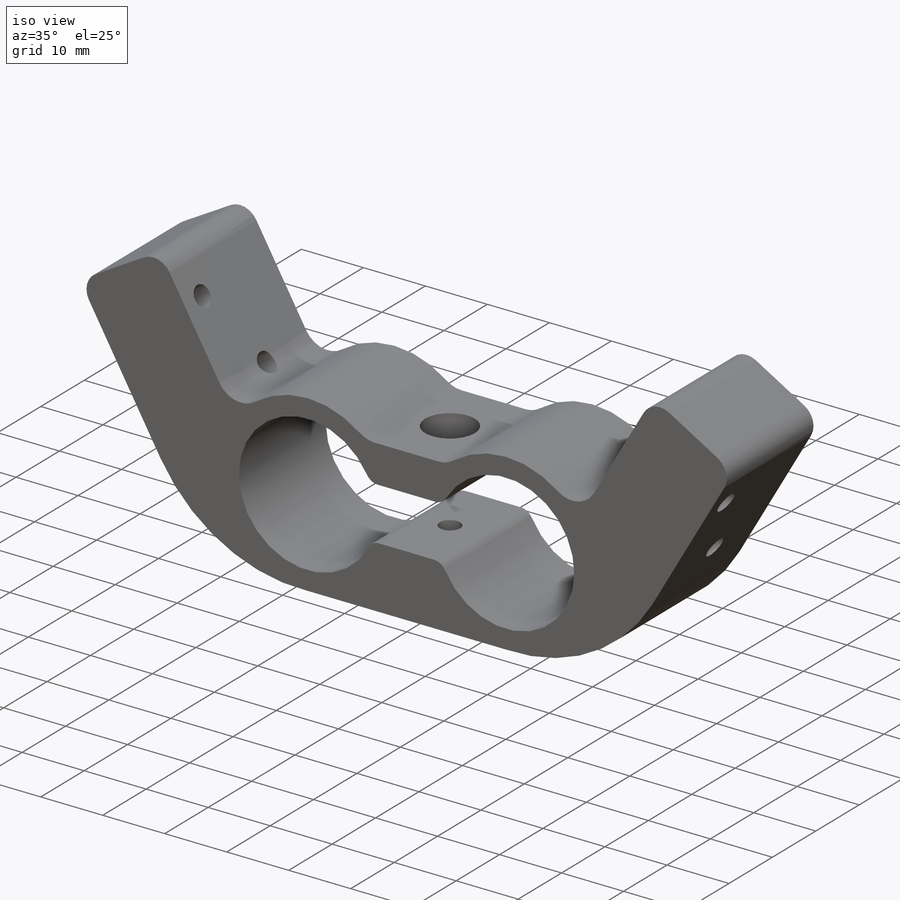
[diagram: iso view]
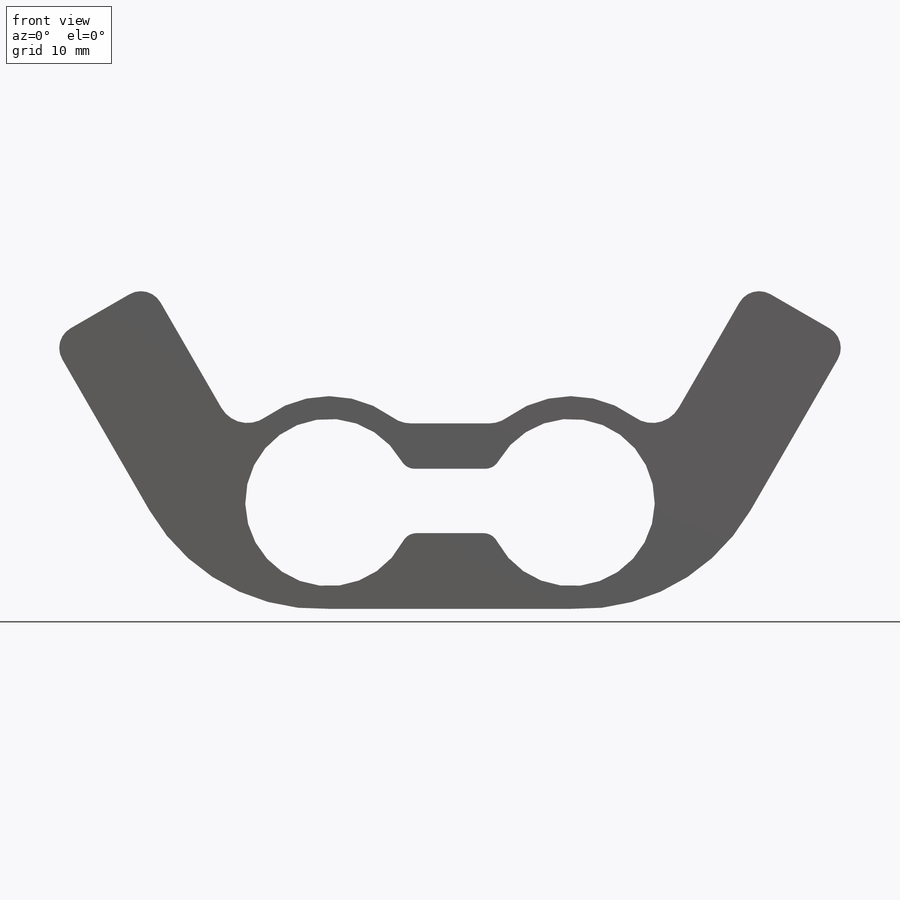
[diagram: front view]
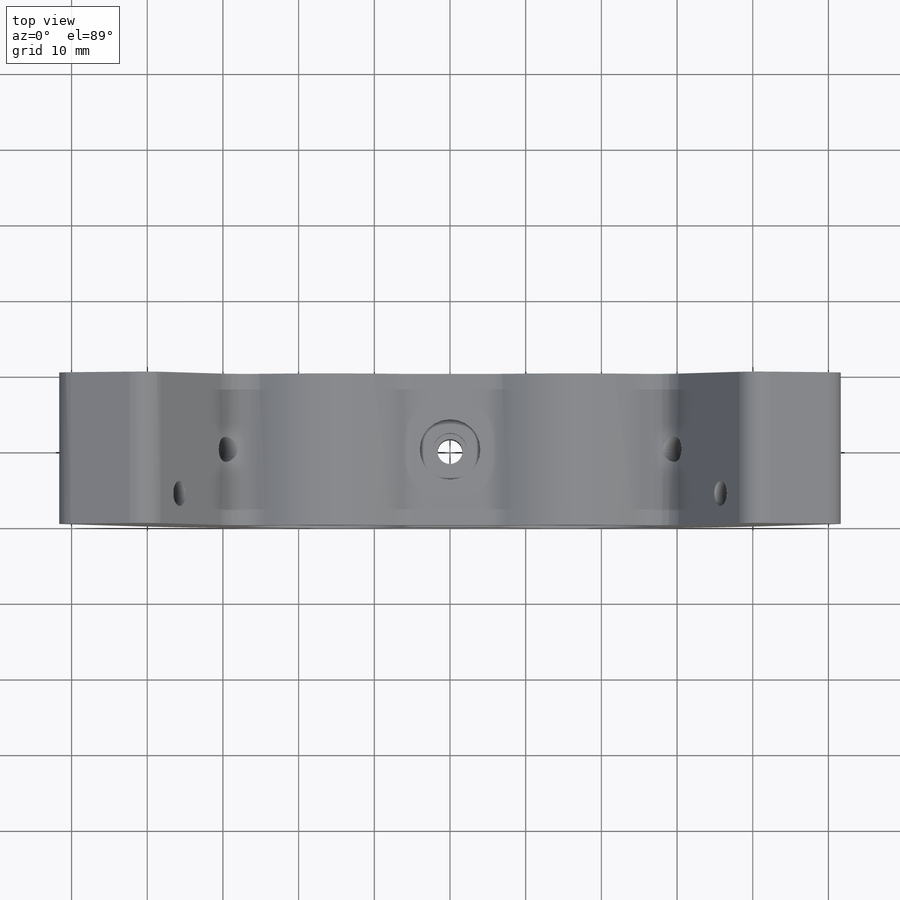
[diagram: top view]
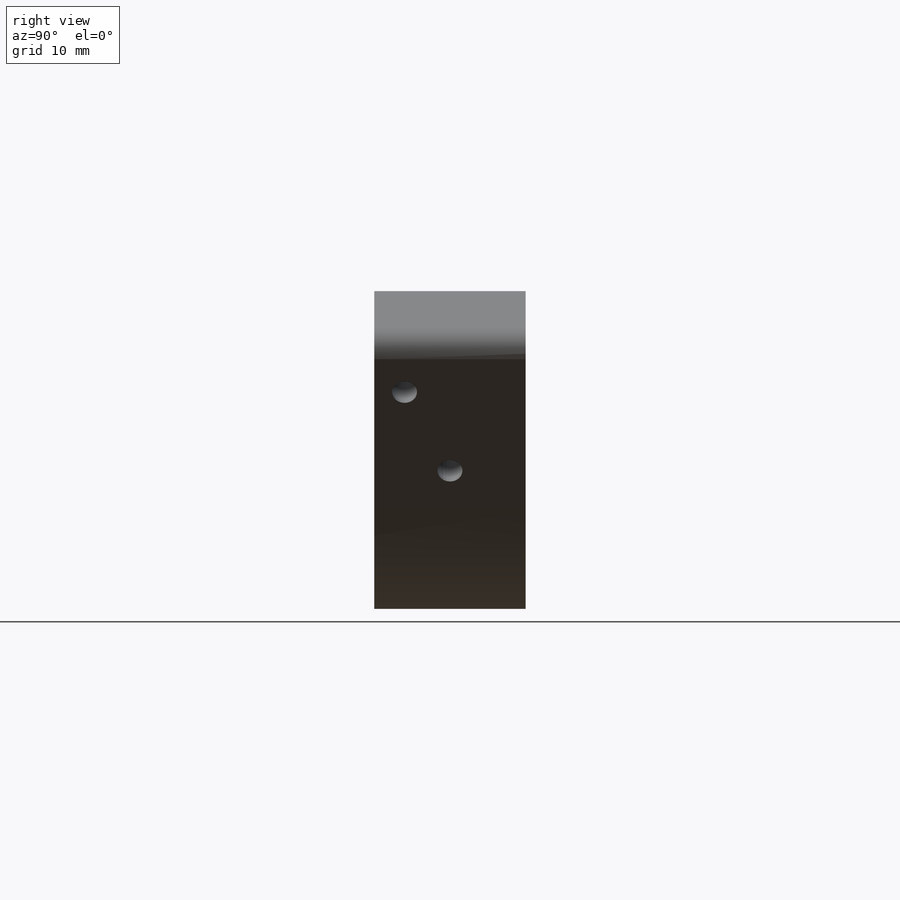
[diagram: right view]
SOLIDWORKS PART (.sldprt)
format: sldprt  version: not decoded by parser v0  size: 514,560 bytes
history: native  units: mm
features: sketch x11, plane x4, hole x3, thread x3, fillet x3, extrude x2, material x1, cut_extrude x1, mirror x1 (+8 scaffold rows collapsed)
feature tree (37):
  scaffold x8  (default folders/planes/origin — collapsed)
  material  "Сплав 2024"
  plane  "Спереди"
  plane  "Сверху"
  plane  "Справа"
  sketch  "Эскиз1"  dims[c1.D1=22.1mm c1.D2=22.1mm c1.D6=14.0mm c1.D16=14.0mm c2.D6=14.0mm c2.D16=14.0mm c2.D2=22.1mm c2.D4=22.1mm c2.D3=16.0mm c3.D4=16.0mm c3.D7=6.0mm c3.D8=~52.119307mm c4.D8=30.0deg c4.D9=~92.957614mm c5.D9=30.0deg c5.D10=15.0mm c5.D11=15.0mm c5.D12=10.0mm c5.D13=8.5mm c5.D14=37.0mm c5.D15=37.0mm c5.D6=3.0mm c5.D16=0.05mm c6.D6=16.0mm c6.D2=16.0mm c6.D5=3.0mm c7.D6=3.0mm c7.D4=3.0mm c8.D6=3.0mm]
  extrude  "Бобышка-Вытянуть2"  Depth=20mm
  sketch  "Эскиз3"
  hole  "Цековка для винта с внутренним шестигранником M41"  [1 undecoded]
  sketch  "Эскиз5"
  sketch  "Эскиз4"  dims[hole-wizard template sketch: 45 standard entries collapsed; hole parameters above]
  hole  "Отверстие обработанное метчиком M4x0.71"  [1 undecoded]
  sketch  "Эскиз7"
  sketch  "Эскиз6"  dims[hole-wizard template sketch: 61 standard entries collapsed; hole parameters above]
  thread  "Отверстие резьбы1"  Diameter=4mm  [1 undecoded]
  sketch  "Эскиз15"  dims[D1=7.0mm]
  extrude  "Бобышка-Вытянуть4"  [1 undecoded]
  sketch  "Эскиз16"  dims[D1=15.0mm]
  cut_extrude  "Вырез-Вытянуть1"  [1 undecoded]
  sketch  "Эскиз8"  dims[c1.D1=5.0mm c1.D2=12.0mm c1.D3=4.0mm c2.D1=8.0mm]
  hole  "Отверстие обработанное метчиком M4x0.72"  [1 undecoded]
  sketch  "Эскиз10"
  sketch  "Эскиз9"  dims[hole-wizard template sketch: 60 standard entries collapsed; hole parameters kept: c18.Глубина проходного сверла=~95.080753mm]
  thread  "Отверстие резьбы4"  Diameter=4mm  [1 undecoded]
  thread  "Отверстие резьбы5"  Diameter=4mm  [1 undecoded]
  plane  "Плоскость1"
  mirror  "Зеркальное отражение1"
  fillet  "Скругление1"  Radius=2mm
  fillet  "Скругление2"  Radius=4mm
  fillet  "Скругление3"  Radius=3mm
decode coverage: 14 of 24 modeling features carry decoded parameters
note: ~ marks probable driven/reference dimensions
note: 8 parameter values undecoded
summary: no parameter record found for 5 features
note: suppression state not decoded; provenance and decode notes live in map.json
